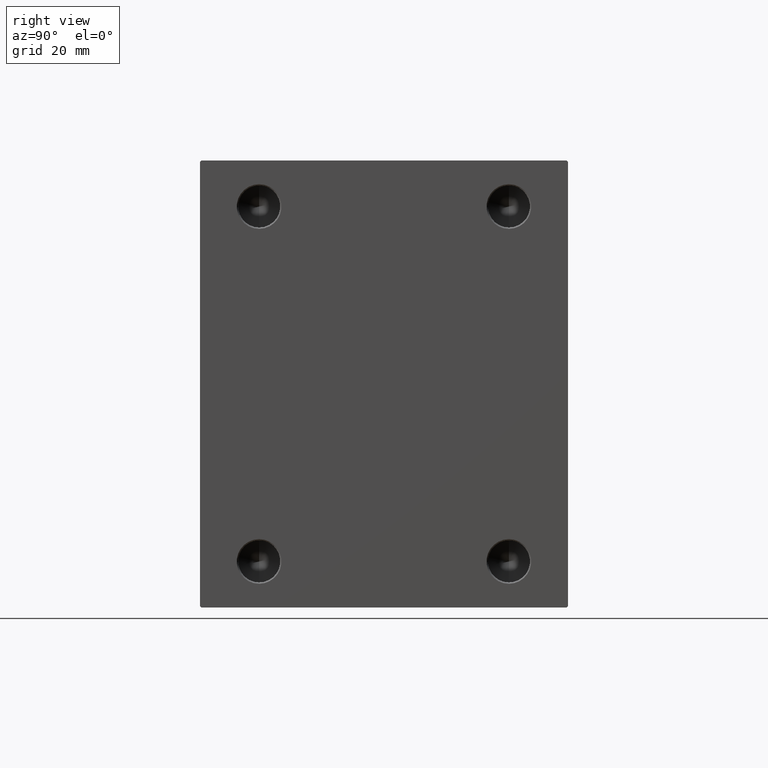
[diagram: clean part render]
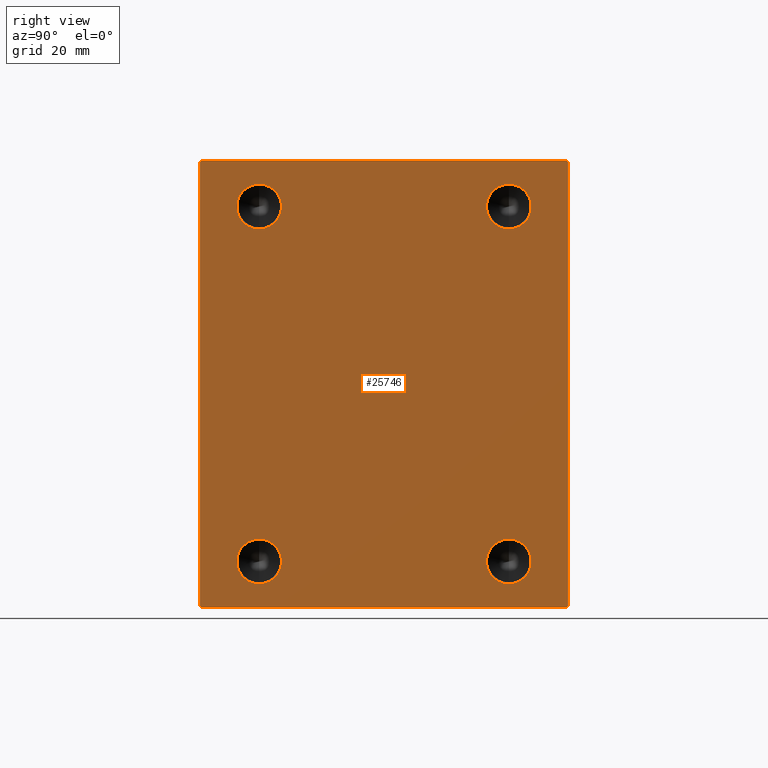
[diagram: same view with one face highlighted and labeled with its STEP entity id]
A machine part, right view. The second image highlights one B-rep face of the part: STEP entity #25746.
In plain terms, the highlighted planar face has unit normal (1, 0, 0).
Its self-contained STEP definition (entity closure, byte-faithful):
#122 = ORIENTED_EDGE ( 'NONE', *, *, #3256, .F. ) ;
#422 = DIRECTION ( 'NONE',  ( 0.000000000000000000, 0.000000000000000000, -1.000000000000000000 ) ) ;
#656 = CARTESIAN_POINT ( 'NONE',  ( 155.0000000000000000, -47.50000000000000000, -67.50000000000001421 ) ) ;
#1052 = EDGE_LOOP ( 'NONE', ( #12589, #27335 ) ) ;
#1096 = DIRECTION ( 'NONE',  ( 0.000000000000000000, 0.000000000000000000, -1.000000000000000000 ) ) ;
#1348 = LINE ( 'NONE', #38903, #9469 ) ;
#1496 = DIRECTION ( 'NONE',  ( 0.000000000000000000, 0.000000000000000000, -1.000000000000000000 ) ) ;
#1583 = EDGE_CURVE ( 'NONE', #23635, #35761, #7188, .T. ) ;
#1755 = VECTOR ( 'NONE', #28807, 999.9999999999998863 ) ;
#2008 = LINE ( 'NONE', #2224, #18102 ) ;
#2099 = CIRCLE ( 'NONE', #15734, 8.500000000000007105 ) ;
#2224 = CARTESIAN_POINT ( 'NONE',  ( 155.0000000000000000, 77.25000000000289901, 77.24999999999647571 ) ) ;
#3233 = AXIS2_PLACEMENT_3D ( 'NONE', #15901, #43793, #12980 ) ;
#3256 = EDGE_CURVE ( 'NONE', #5429, #11492, #9294, .T. ) ;
#3581 = DIRECTION ( 'NONE',  ( 0.000000000000000000, 1.000000000000000000, 0.000000000000000000 ) ) ;
#3824 = FACE_BOUND ( 'NONE', #33583, .T. ) ;
#4293 = AXIS2_PLACEMENT_3D ( 'NONE', #26781, #19804, #20032 ) ;
#4374 = VERTEX_POINT ( 'NONE', #29230 ) ;
#5353 = AXIS2_PLACEMENT_3D ( 'NONE', #43177, #39582, #12361 ) ;
#5429 = VERTEX_POINT ( 'NONE', #34831 ) ;
#5524 = EDGE_CURVE ( 'NONE', #24551, #4374, #7322, .T. ) ;
#6031 = VECTOR ( 'NONE', #41750, 1000.000000000000000 ) ;
#6044 = EDGE_CURVE ( 'NONE', #31878, #23570, #1348, .T. ) ;
#6157 = EDGE_CURVE ( 'NONE', #42877, #24112, #2008, .T. ) ;
#7188 = CIRCLE ( 'NONE', #37372, 8.500000000000007105 ) ;
#7322 = CIRCLE ( 'NONE', #15941, 8.500000000000007105 ) ;
#7402 = CARTESIAN_POINT ( 'NONE',  ( 155.0000000000000000, -70.00000000000000000, -85.00000000000000000 ) ) ;
#8132 = EDGE_CURVE ( 'NONE', #23570, #43658, #33279, .T. ) ;
#8492 = CARTESIAN_POINT ( 'NONE',  ( 155.0000000000000000, -70.00000000000000000, 84.49999999999998579 ) ) ;
#9294 = CIRCLE ( 'NONE', #4293, 8.500000000000007105 ) ;
#9469 = VECTOR ( 'NONE', #15268, 1000.000000000000000 ) ;
#10100 = CARTESIAN_POINT ( 'NONE',  ( 155.0000000000000000, -77.25000000000098055, -77.24999999999883471 ) ) ;
#10501 = EDGE_LOOP ( 'NONE', ( #38604, #36723 ) ) ;
#11264 = EDGE_CURVE ( 'NONE', #4374, #24551, #13915, .T. ) ;
#11492 = VERTEX_POINT ( 'NONE', #20394 ) ;
#11718 = EDGE_CURVE ( 'NONE', #40488, #31878, #19836, .T. ) ;
#12361 = DIRECTION ( 'NONE',  ( 0.000000000000000000, 0.000000000000000000, -1.000000000000000000 ) ) ;
#12480 = EDGE_CURVE ( 'NONE', #24112, #40488, #32082, .T. ) ;
#12589 = ORIENTED_EDGE ( 'NONE', *, *, #5524, .F. ) ;
#12980 = DIRECTION ( 'NONE',  ( 0.000000000000000000, 0.000000000000000000, -1.000000000000000000 ) ) ;
#13182 = AXIS2_PLACEMENT_3D ( 'NONE', #28537, #17962, #1096 ) ;
#13247 = DIRECTION ( 'NONE',  ( -0.000000000000000000, 0.7071067811865376918, -0.7071067811865574537 ) ) ;
#13264 = CARTESIAN_POINT ( 'NONE',  ( 155.0000000000000000, -69.50000000000000000, -85.00000000000000000 ) ) ;
#13487 = CARTESIAN_POINT ( 'NONE',  ( 155.0000000000000000, -47.50000000000000000, 76.00000000000001421 ) ) ;
#13724 = FACE_OUTER_BOUND ( 'NONE', #16905, .T. ) ;
#13914 = LINE ( 'NONE', #7402, #33374 ) ;
#13915 = CIRCLE ( 'NONE', #13182, 8.500000000000007105 ) ;
#14394 = FACE_BOUND ( 'NONE', #1052, .T. ) ;
#14975 = VERTEX_POINT ( 'NONE', #39921 ) ;
#15195 = DIRECTION ( 'NONE',  ( 1.000000000000000000, -0.000000000000000000, -0.000000000000000000 ) ) ;
#15268 = DIRECTION ( 'NONE',  ( 0.000000000000000000, 0.000000000000000000, -1.000000000000000000 ) ) ;
#15476 = EDGE_LOOP ( 'NONE', ( #40678, #33974 ) ) ;
#15732 = CARTESIAN_POINT ( 'NONE',  ( 155.0000000000000000, 77.24999999999904787, -77.25000000000119371 ) ) ;
#15734 = AXIS2_PLACEMENT_3D ( 'NONE', #29591, #15195, #1496 ) ;
#15901 = CARTESIAN_POINT ( 'NONE',  ( 155.0000000000000000, 47.50000000000000000, -67.50000000000001421 ) ) ;
#15941 = AXIS2_PLACEMENT_3D ( 'NONE', #31228, #41562, #422 ) ;
#16298 = CARTESIAN_POINT ( 'NONE',  ( 155.0000000000000000, 70.00000000000000000, 84.49999999999997158 ) ) ;
#16886 = CARTESIAN_POINT ( 'NONE',  ( 155.0000000000000000, -47.50000000000000000, -59.00000000000000000 ) ) ;
#16905 = EDGE_LOOP ( 'NONE', ( #29031, #17399, #28721, #31761, #39937, #21233, #29757, #40765 ) ) ;
#17316 = PLANE ( 'NONE',  #32129 ) ;
#17389 = DIRECTION ( 'NONE',  ( 0.000000000000000000, 0.000000000000000000, -1.000000000000000000 ) ) ;
#17399 = ORIENTED_EDGE ( 'NONE', *, *, #11718, .T. ) ;
#17962 = DIRECTION ( 'NONE',  ( 1.000000000000000000, -0.000000000000000000, -0.000000000000000000 ) ) ;
#18102 = VECTOR ( 'NONE', #29449, 1000.000000000000000 ) ;
#18223 = EDGE_CURVE ( 'NONE', #14975, #29877, #25865, .T. ) ;
#18263 = EDGE_CURVE ( 'NONE', #35761, #23635, #22585, .T. ) ;
#18591 = EDGE_CURVE ( 'NONE', #23054, #30930, #20472, .T. ) ;
#19379 = EDGE_CURVE ( 'NONE', #43658, #14975, #13914, .T. ) ;
#19600 = EDGE_CURVE ( 'NONE', #11492, #5429, #23326, .T. ) ;
#19804 = DIRECTION ( 'NONE',  ( 1.000000000000000000, -0.000000000000000000, -0.000000000000000000 ) ) ;
#19836 = LINE ( 'NONE', #22769, #23977 ) ;
#20032 = DIRECTION ( 'NONE',  ( 0.000000000000000000, 0.000000000000000000, -1.000000000000000000 ) ) ;
#20394 = CARTESIAN_POINT ( 'NONE',  ( 155.0000000000000000, 47.50000000000000000, -76.00000000000004263 ) ) ;
#20472 = CIRCLE ( 'NONE', #43449, 8.500000000000007105 ) ;
#21233 = ORIENTED_EDGE ( 'NONE', *, *, #18223, .T. ) ;
#21335 = DIRECTION ( 'NONE',  ( 1.000000000000000000, -0.000000000000000000, -0.000000000000000000 ) ) ;
#22244 = CARTESIAN_POINT ( 'NONE',  ( 155.0000000000000000, -47.50000000000000000, 58.99999999999997158 ) ) ;
#22375 = CARTESIAN_POINT ( 'NONE',  ( 155.0000000000000000, -69.49999999999997158, 84.99999999999998579 ) ) ;
#22585 = CIRCLE ( 'NONE', #5353, 8.500000000000007105 ) ;
#22769 = CARTESIAN_POINT ( 'NONE',  ( 155.0000000000000000, -77.24999999999803890, 77.25000000000234479 ) ) ;
#23054 = VERTEX_POINT ( 'NONE', #16886 ) ;
#23326 = CIRCLE ( 'NONE', #3233, 8.500000000000007105 ) ;
#23570 = VERTEX_POINT ( 'NONE', #35800 ) ;
#23635 = VERTEX_POINT ( 'NONE', #13487 ) ;
#23977 = VECTOR ( 'NONE', #32674, 1000.000000000000000 ) ;
#24112 = VERTEX_POINT ( 'NONE', #27822 ) ;
#24370 = CARTESIAN_POINT ( 'NONE',  ( 155.0000000000000000, -47.50000000000000000, 67.49999999999998579 ) ) ;
#24514 = FACE_BOUND ( 'NONE', #15476, .T. ) ;
#24551 = VERTEX_POINT ( 'NONE', #24607 ) ;
#24588 = DIRECTION ( 'NONE',  ( 1.000000000000000000, -0.000000000000000000, -0.000000000000000000 ) ) ;
#24607 = CARTESIAN_POINT ( 'NONE',  ( 155.0000000000000000, 47.50000000000000000, 76.00000000000001421 ) ) ;
#24729 = ORIENTED_EDGE ( 'NONE', *, *, #19600, .F. ) ;
#25365 = DIRECTION ( 'NONE',  ( 0.000000000000000000, 0.000000000000000000, -1.000000000000000000 ) ) ;
#25746 = ADVANCED_FACE ( 'NONE', ( #14394, #24514, #41829, #3824, #13724 ), #17316, .T. ) ;
#25865 = LINE ( 'NONE', #15732, #1755 ) ;
#26166 = CARTESIAN_POINT ( 'NONE',  ( 155.0000000000000000, -47.50000000000000000, -76.00000000000004263 ) ) ;
#26781 = CARTESIAN_POINT ( 'NONE',  ( 155.0000000000000000, 47.50000000000000000, -67.50000000000001421 ) ) ;
#27335 = ORIENTED_EDGE ( 'NONE', *, *, #11264, .F. ) ;
#27512 = VECTOR ( 'NONE', #13247, 999.9999999999998863 ) ;
#27675 = DIRECTION ( 'NONE',  ( 1.000000000000000000, 0.000000000000000000, 0.000000000000000000 ) ) ;
#27822 = CARTESIAN_POINT ( 'NONE',  ( 155.0000000000000000, 69.50000000000000000, 85.00000000000001421 ) ) ;
#28046 = CARTESIAN_POINT ( 'NONE',  ( 155.0000000000000000, 70.00000000000000000, 85.00000000000001421 ) ) ;
#28537 = CARTESIAN_POINT ( 'NONE',  ( 155.0000000000000000, 47.50000000000000000, 67.49999999999998579 ) ) ;
#28721 = ORIENTED_EDGE ( 'NONE', *, *, #6044, .T. ) ;
#28807 = DIRECTION ( 'NONE',  ( -0.000000000000000000, 0.7071067811865574537, 0.7071067811865376918 ) ) ;
#29031 = ORIENTED_EDGE ( 'NONE', *, *, #12480, .T. ) ;
#29230 = CARTESIAN_POINT ( 'NONE',  ( 155.0000000000000000, 47.50000000000000000, 58.99999999999997158 ) ) ;
#29449 = DIRECTION ( 'NONE',  ( -0.000000000000000000, -0.7071067811865181518, 0.7071067811865769936 ) ) ;
#29591 = CARTESIAN_POINT ( 'NONE',  ( 155.0000000000000000, -47.50000000000000000, -67.50000000000001421 ) ) ;
#29757 = ORIENTED_EDGE ( 'NONE', *, *, #40667, .T. ) ;
#29877 = VERTEX_POINT ( 'NONE', #36967 ) ;
#30245 = LINE ( 'NONE', #43944, #37098 ) ;
#30930 = VERTEX_POINT ( 'NONE', #26166 ) ;
#31228 = CARTESIAN_POINT ( 'NONE',  ( 155.0000000000000000, 47.50000000000000000, 67.49999999999998579 ) ) ;
#31761 = ORIENTED_EDGE ( 'NONE', *, *, #8132, .T. ) ;
#31878 = VERTEX_POINT ( 'NONE', #8492 ) ;
#32082 = LINE ( 'NONE', #28046, #6031 ) ;
#32129 = AXIS2_PLACEMENT_3D ( 'NONE', #38465, #27675, #38245 ) ;
#32674 = DIRECTION ( 'NONE',  ( 0.000000000000000000, -0.7071067811865672237, -0.7071067811865279218 ) ) ;
#33279 = LINE ( 'NONE', #10100, #27512 ) ;
#33374 = VECTOR ( 'NONE', #3581, 1000.000000000000000 ) ;
#33583 = EDGE_LOOP ( 'NONE', ( #122, #24729 ) ) ;
#33974 = ORIENTED_EDGE ( 'NONE', *, *, #18263, .F. ) ;
#34831 = CARTESIAN_POINT ( 'NONE',  ( 155.0000000000000000, 47.50000000000000000, -59.00000000000000000 ) ) ;
#34888 = DIRECTION ( 'NONE',  ( 0.000000000000000000, -8.163404592832031500E-17, 1.000000000000000000 ) ) ;
#35095 = EDGE_CURVE ( 'NONE', #30930, #23054, #2099, .T. ) ;
#35761 = VERTEX_POINT ( 'NONE', #22244 ) ;
#35800 = CARTESIAN_POINT ( 'NONE',  ( 155.0000000000000000, -70.00000000000000000, -84.49999999999998579 ) ) ;
#36723 = ORIENTED_EDGE ( 'NONE', *, *, #35095, .F. ) ;
#36967 = CARTESIAN_POINT ( 'NONE',  ( 155.0000000000000000, 70.00000000000001421, -84.50000000000000000 ) ) ;
#37098 = VECTOR ( 'NONE', #34888, 1000.000000000000000 ) ;
#37372 = AXIS2_PLACEMENT_3D ( 'NONE', #24370, #24588, #17389 ) ;
#38245 = DIRECTION ( 'NONE',  ( 0.000000000000000000, 0.000000000000000000, -1.000000000000000000 ) ) ;
#38465 = CARTESIAN_POINT ( 'NONE',  ( 155.0000000000000000, 0.000000000000000000, 0.000000000000000000 ) ) ;
#38604 = ORIENTED_EDGE ( 'NONE', *, *, #18591, .F. ) ;
#38903 = CARTESIAN_POINT ( 'NONE',  ( 155.0000000000000000, -70.00000000000000000, 84.99999999999998579 ) ) ;
#39582 = DIRECTION ( 'NONE',  ( 1.000000000000000000, -0.000000000000000000, -0.000000000000000000 ) ) ;
#39921 = CARTESIAN_POINT ( 'NONE',  ( 155.0000000000000000, 69.50000000000000000, -85.00000000000000000 ) ) ;
#39937 = ORIENTED_EDGE ( 'NONE', *, *, #19379, .T. ) ;
#40488 = VERTEX_POINT ( 'NONE', #22375 ) ;
#40667 = EDGE_CURVE ( 'NONE', #29877, #42877, #30245, .T. ) ;
#40678 = ORIENTED_EDGE ( 'NONE', *, *, #1583, .F. ) ;
#40765 = ORIENTED_EDGE ( 'NONE', *, *, #6157, .T. ) ;
#41562 = DIRECTION ( 'NONE',  ( 1.000000000000000000, -0.000000000000000000, -0.000000000000000000 ) ) ;
#41750 = DIRECTION ( 'NONE',  ( 0.000000000000000000, -1.000000000000000000, -1.982541115402065110E-16 ) ) ;
#41829 = FACE_BOUND ( 'NONE', #10501, .T. ) ;
#42877 = VERTEX_POINT ( 'NONE', #16298 ) ;
#43177 = CARTESIAN_POINT ( 'NONE',  ( 155.0000000000000000, -47.50000000000000000, 67.49999999999998579 ) ) ;
#43449 = AXIS2_PLACEMENT_3D ( 'NONE', #656, #21335, #25365 ) ;
#43658 = VERTEX_POINT ( 'NONE', #13264 ) ;
#43793 = DIRECTION ( 'NONE',  ( 1.000000000000000000, -0.000000000000000000, -0.000000000000000000 ) ) ;
#43944 = CARTESIAN_POINT ( 'NONE',  ( 155.0000000000000000, 70.00000000000001421, -85.00000000000000000 ) ) ;